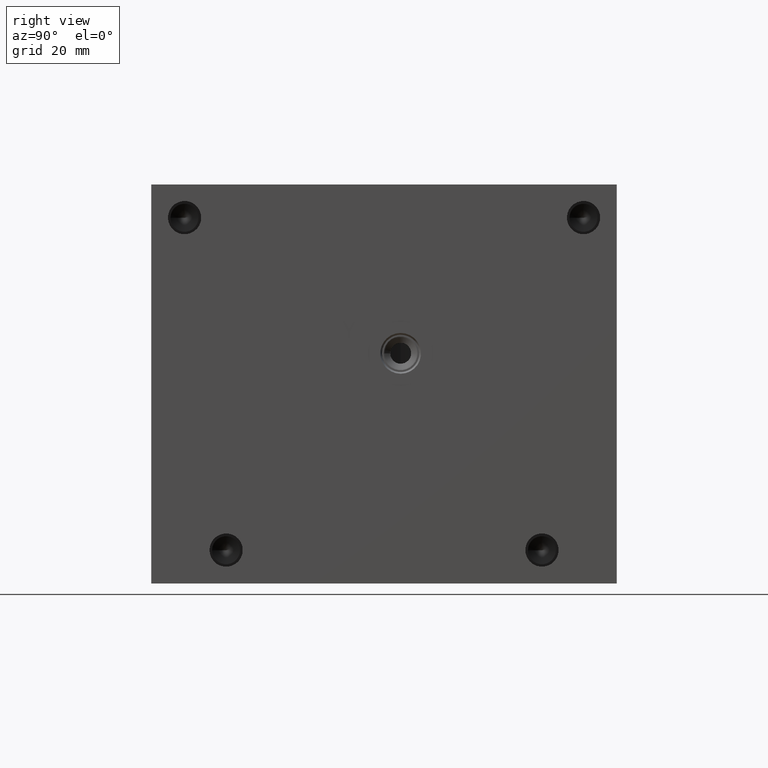
[diagram: clean part render]
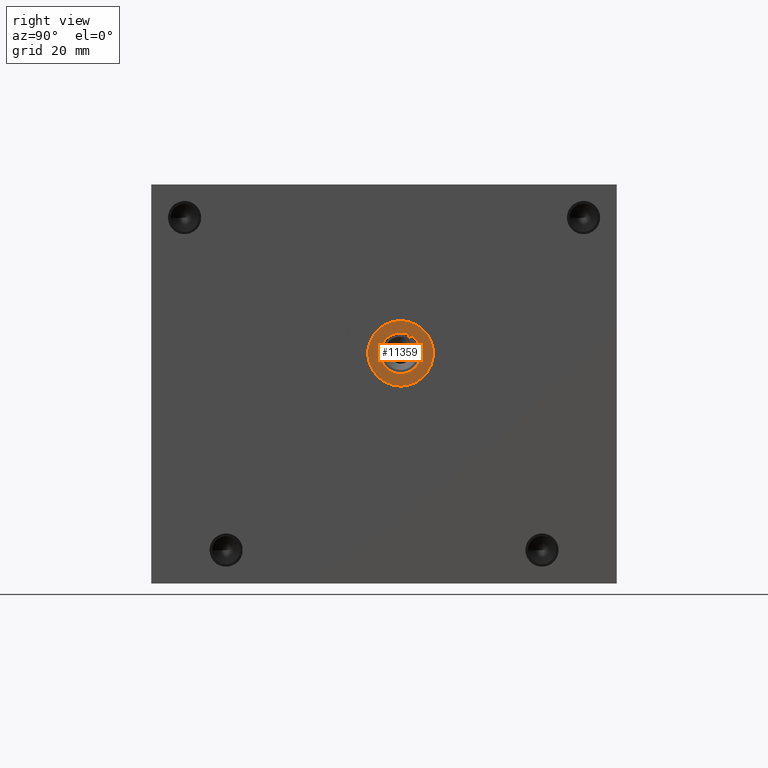
[diagram: same view with one face highlighted and labeled with its STEP entity id]
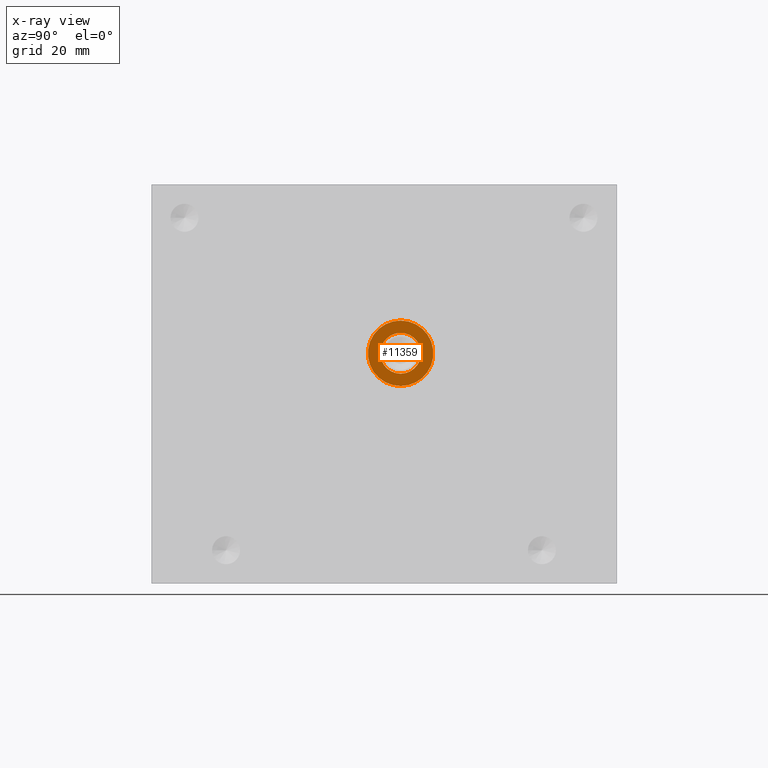
[diagram: x-ray of the same camera — body ghosted, the highlighted face saturated]
A machine part, right view. The second image highlights one B-rep face of the part: STEP entity #11359.
The next image is the same camera in x-ray: the body ghosted, the highlighted face saturated — about 0% of this face is hidden behind the body in this view.
In plain terms, the highlighted planar face has unit normal (-1, 0, 0).
Its self-contained STEP definition (entity closure, byte-faithful):
#254=CIRCLE('',#11979,12.5095);
#255=CIRCLE('',#11980,12.5095);
#256=CIRCLE('',#11982,7.79780000000001);
#257=CIRCLE('',#11983,7.79780000000001);
#480=FACE_BOUND('',#1937,.T.);
#1287=FACE_OUTER_BOUND('',#1936,.T.);
#1936=EDGE_LOOP('',(#9560,#9561));
#1937=EDGE_LOOP('',(#9562,#9563));
#5194=VERTEX_POINT('',#18890);
#5195=VERTEX_POINT('',#18892);
#5196=VERTEX_POINT('',#18896);
#5197=VERTEX_POINT('',#18897);
#6707=EDGE_CURVE('',#5194,#5195,#254,.T.);
#6708=EDGE_CURVE('',#5195,#5194,#255,.T.);
#6709=EDGE_CURVE('',#5196,#5197,#256,.T.);
#6710=EDGE_CURVE('',#5197,#5196,#257,.T.);
#9560=ORIENTED_EDGE('',*,*,#6708,.F.);
#9561=ORIENTED_EDGE('',*,*,#6707,.F.);
#9562=ORIENTED_EDGE('',*,*,#6709,.T.);
#9563=ORIENTED_EDGE('',*,*,#6710,.T.);
#10438=PLANE('',#11981);
#11359=ADVANCED_FACE('',(#1287,#480),#10438,.F.);
#11979=AXIS2_PLACEMENT_3D('',#18893,#14274,#14275);
#11980=AXIS2_PLACEMENT_3D('',#18894,#14276,#14277);
#11981=AXIS2_PLACEMENT_3D('',#18895,#14278,#14279);
#11982=AXIS2_PLACEMENT_3D('',#18898,#14280,#14281);
#11983=AXIS2_PLACEMENT_3D('',#18899,#14282,#14283);
#14274=DIRECTION('center_axis',(-1.,0.,0.));
#14275=DIRECTION('ref_axis',(0.,0.,1.));
#14276=DIRECTION('center_axis',(-1.,0.,0.));
#14277=DIRECTION('ref_axis',(0.,0.,1.));
#14278=DIRECTION('center_axis',(-1.,0.,0.));
#14279=DIRECTION('ref_axis',(0.,0.,1.));
#14280=DIRECTION('center_axis',(-1.,0.,0.));
#14281=DIRECTION('ref_axis',(0.,0.,1.));
#14282=DIRECTION('center_axis',(-1.,0.,0.));
#14283=DIRECTION('ref_axis',(0.,0.,1.));
#18890=CARTESIAN_POINT('',(151.6126,95.25,100.4189));
#18892=CARTESIAN_POINT('',(151.6126,95.25,75.3999));
#18893=CARTESIAN_POINT('Origin',(151.6126,95.25,87.9094));
#18894=CARTESIAN_POINT('Origin',(151.6126,95.25,87.9094));
#18895=CARTESIAN_POINT('Origin',(151.6126,95.25,80.1116));
#18896=CARTESIAN_POINT('',(151.6126,95.25,80.1116));
#18897=CARTESIAN_POINT('',(151.6126,95.25,95.7072));
#18898=CARTESIAN_POINT('Origin',(151.6126,95.25,87.9094));
#18899=CARTESIAN_POINT('Origin',(151.6126,95.25,87.9094));